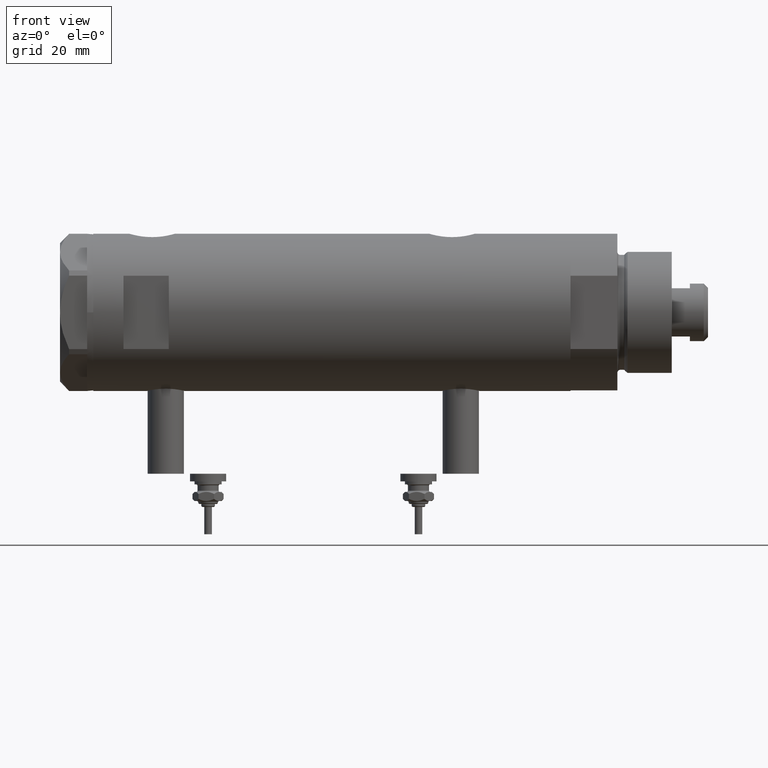
[diagram: clean part render]
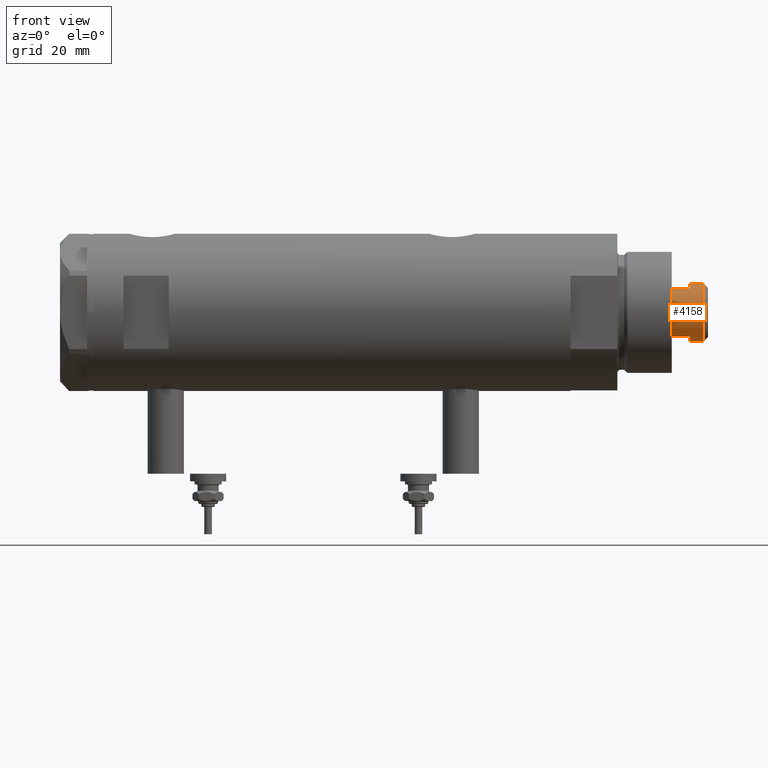
[diagram: same view with one face highlighted and labeled with its STEP entity id]
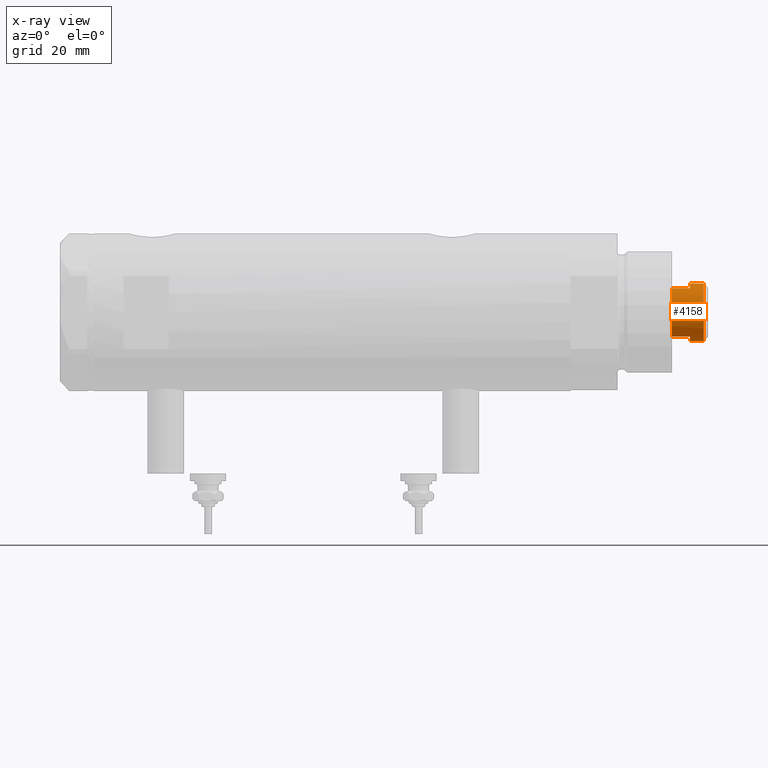
[diagram: x-ray of the same camera — body ghosted, the highlighted face saturated]
A machine part, front view. The second image highlights one B-rep face of the part: STEP entity #4158.
The next image is the same camera in x-ray: the body ghosted, the highlighted face saturated — about 0% of this face is hidden behind the body in this view.
In plain terms, the highlighted cylindrical surface (edge-blend (fillet) strip) has radius 9.5 mm, axis along (-1, -0, 0).
Its self-contained STEP definition (entity closure, byte-faithful):
#25 = AXIS2_PLACEMENT_3D ( 'NONE', #3577, #5478, #4934 ) ;
#64 = CARTESIAN_POINT ( 'NONE',  ( -9.500000000000001776, 0.000000000000000000, 178.2000000000000171 ) ) ;
#68 = DIRECTION ( 'NONE',  ( -0.000000000000000000, -0.000000000000000000, -1.000000000000000000 ) ) ;
#101 = CARTESIAN_POINT ( 'NONE',  ( -7.982950582334829015, -5.150000000000001243, 173.6000000000000227 ) ) ;
#167 = CIRCLE ( 'NONE', #1178, 9.500000000000000000 ) ;
#307 = CARTESIAN_POINT ( 'NONE',  ( 0.000000000000000000, 0.000000000000000000, 173.6000000000000227 ) ) ;
#352 = AXIS2_PLACEMENT_3D ( 'NONE', #3779, #1879, #6266 ) ;
#407 = LINE ( 'NONE', #3792, #5768 ) ;
#468 = CARTESIAN_POINT ( 'NONE',  ( -7.982950582334825462, -5.150000000000042988, 167.6000000000000227 ) ) ;
#564 = CARTESIAN_POINT ( 'NONE',  ( -7.982950582334825462, -5.150000000000003020, 173.6000000000000227 ) ) ;
#1178 = AXIS2_PLACEMENT_3D ( 'NONE', #307, #4167, #4200 ) ;
#1192 = EDGE_CURVE ( 'NONE', #2753, #5031, #5300, .T. ) ;
#1219 = EDGE_CURVE ( 'NONE', #2753, #6053, #2792, .T. ) ;
#1291 = AXIS2_PLACEMENT_3D ( 'NONE', #4282, #2287, #4257 ) ;
#1314 = ORIENTED_EDGE ( 'NONE', *, *, #1219, .T. ) ;
#1315 = DIRECTION ( 'NONE',  ( -0.000000000000000000, -0.000000000000000000, -1.000000000000000000 ) ) ;
#1594 = VECTOR ( 'NONE', #3402, 1000.000000000000000 ) ;
#1610 = DIRECTION ( 'NONE',  ( -1.000000000000000000, 0.000000000000000000, 0.000000000000000000 ) ) ;
#1651 = VERTEX_POINT ( 'NONE', #4708 ) ;
#1810 = LINE ( 'NONE', #4815, #1594 ) ;
#1879 = DIRECTION ( 'NONE',  ( 0.000000000000000000, 0.000000000000000000, 1.000000000000000000 ) ) ;
#1951 = EDGE_CURVE ( 'NONE', #6287, #2393, #5660, .T. ) ;
#2142 = ORIENTED_EDGE ( 'NONE', *, *, #5101, .F. ) ;
#2287 = DIRECTION ( 'NONE',  ( 0.000000000000000000, 0.000000000000000000, 1.000000000000000000 ) ) ;
#2393 = VERTEX_POINT ( 'NONE', #564 ) ;
#2485 = ORIENTED_EDGE ( 'NONE', *, *, #1951, .T. ) ;
#2489 = CARTESIAN_POINT ( 'NONE',  ( 9.500000000000001776, 1.163414459189985682E-15, 178.2000000000000171 ) ) ;
#2620 = EDGE_CURVE ( 'NONE', #2393, #5513, #5439, .T. ) ;
#2659 = EDGE_CURVE ( 'NONE', #6053, #6287, #407, .T. ) ;
#2708 = ORIENTED_EDGE ( 'NONE', *, *, #2620, .T. ) ;
#2753 = VERTEX_POINT ( 'NONE', #2489 ) ;
#2792 = CIRCLE ( 'NONE', #25, 9.500000000000001776 ) ;
#2859 = CARTESIAN_POINT ( 'NONE',  ( 9.500000000000000000, 1.163414459189985485E-15, 173.6000000000000227 ) ) ;
#2887 = VECTOR ( 'NONE', #68, 1000.000000000000000 ) ;
#2930 = ORIENTED_EDGE ( 'NONE', *, *, #2659, .T. ) ;
#3029 = FACE_OUTER_BOUND ( 'NONE', #3155, .T. ) ;
#3090 = DIRECTION ( 'NONE',  ( -0.000000000000000000, -0.000000000000000000, -1.000000000000000000 ) ) ;
#3155 = EDGE_LOOP ( 'NONE', ( #5228, #1314, #2930, #2485, #2708, #5517, #2142, #4957 ) ) ;
#3337 = CARTESIAN_POINT ( 'NONE',  ( 7.982950582334832568, -5.149999999999997691, 173.6000000000000227 ) ) ;
#3390 = CARTESIAN_POINT ( 'NONE',  ( 9.500000000000001776, 1.163414459189985682E-15, 173.6000000000000227 ) ) ;
#3402 = DIRECTION ( 'NONE',  ( -0.000000000000000000, -0.000000000000000000, -1.000000000000000000 ) ) ;
#3577 = CARTESIAN_POINT ( 'NONE',  ( 0.000000000000000000, 0.000000000000000000, 178.2000000000000171 ) ) ;
#3779 = CARTESIAN_POINT ( 'NONE',  ( 0.000000000000000000, 0.000000000000000000, 173.6000000000000227 ) ) ;
#3792 = CARTESIAN_POINT ( 'NONE',  ( -9.500000000000001776, 0.000000000000000000, 173.6000000000000227 ) ) ;
#3933 = VECTOR ( 'NONE', #5354, 1000.000000000000000 ) ;
#4145 = AXIS2_PLACEMENT_3D ( 'NONE', #4950, #3090, #1610 ) ;
#4154 = CIRCLE ( 'NONE', #1291, 9.500000000000001776 ) ;
#4158 = ADVANCED_FACE ( 'NONE', ( #3029 ), #5938, .T. ) ;
#4167 = DIRECTION ( 'NONE',  ( 0.000000000000000000, 0.000000000000000000, 1.000000000000000000 ) ) ;
#4200 = DIRECTION ( 'NONE',  ( 1.000000000000000000, 0.000000000000000000, 0.000000000000000000 ) ) ;
#4257 = DIRECTION ( 'NONE',  ( 1.000000000000000000, 0.000000000000000000, 0.000000000000000000 ) ) ;
#4282 = CARTESIAN_POINT ( 'NONE',  ( 0.000000000000000000, 0.000000000000000000, 167.6000000000000227 ) ) ;
#4499 = EDGE_CURVE ( 'NONE', #5137, #5031, #167, .T. ) ;
#4708 = CARTESIAN_POINT ( 'NONE',  ( 7.982950582334834344, -5.150000000000034994, 167.6000000000000227 ) ) ;
#4815 = CARTESIAN_POINT ( 'NONE',  ( 7.982950582334832568, -5.149999999999997691, 173.6000000000000227 ) ) ;
#4934 = DIRECTION ( 'NONE',  ( 1.000000000000000000, 0.000000000000000000, 0.000000000000000000 ) ) ;
#4950 = CARTESIAN_POINT ( 'NONE',  ( 0.000000000000000000, 0.000000000000000000, 173.6000000000000227 ) ) ;
#4957 = ORIENTED_EDGE ( 'NONE', *, *, #4499, .T. ) ;
#5031 = VERTEX_POINT ( 'NONE', #2859 ) ;
#5064 = EDGE_CURVE ( 'NONE', #5513, #1651, #4154, .T. ) ;
#5101 = EDGE_CURVE ( 'NONE', #5137, #1651, #1810, .T. ) ;
#5137 = VERTEX_POINT ( 'NONE', #3337 ) ;
#5228 = ORIENTED_EDGE ( 'NONE', *, *, #1192, .F. ) ;
#5300 = LINE ( 'NONE', #3390, #3933 ) ;
#5354 = DIRECTION ( 'NONE',  ( -0.000000000000000000, -0.000000000000000000, -1.000000000000000000 ) ) ;
#5439 = LINE ( 'NONE', #101, #2887 ) ;
#5478 = DIRECTION ( 'NONE',  ( 0.000000000000000000, 0.000000000000000000, -1.000000000000000000 ) ) ;
#5513 = VERTEX_POINT ( 'NONE', #468 ) ;
#5517 = ORIENTED_EDGE ( 'NONE', *, *, #5064, .T. ) ;
#5660 = CIRCLE ( 'NONE', #352, 9.500000000000000000 ) ;
#5725 = CARTESIAN_POINT ( 'NONE',  ( -9.500000000000000000, 0.000000000000000000, 173.6000000000000227 ) ) ;
#5768 = VECTOR ( 'NONE', #1315, 1000.000000000000000 ) ;
#5938 = CYLINDRICAL_SURFACE ( 'NONE', #4145, 9.500000000000001776 ) ;
#6053 = VERTEX_POINT ( 'NONE', #64 ) ;
#6266 = DIRECTION ( 'NONE',  ( 1.000000000000000000, 0.000000000000000000, 0.000000000000000000 ) ) ;
#6287 = VERTEX_POINT ( 'NONE', #5725 ) ;